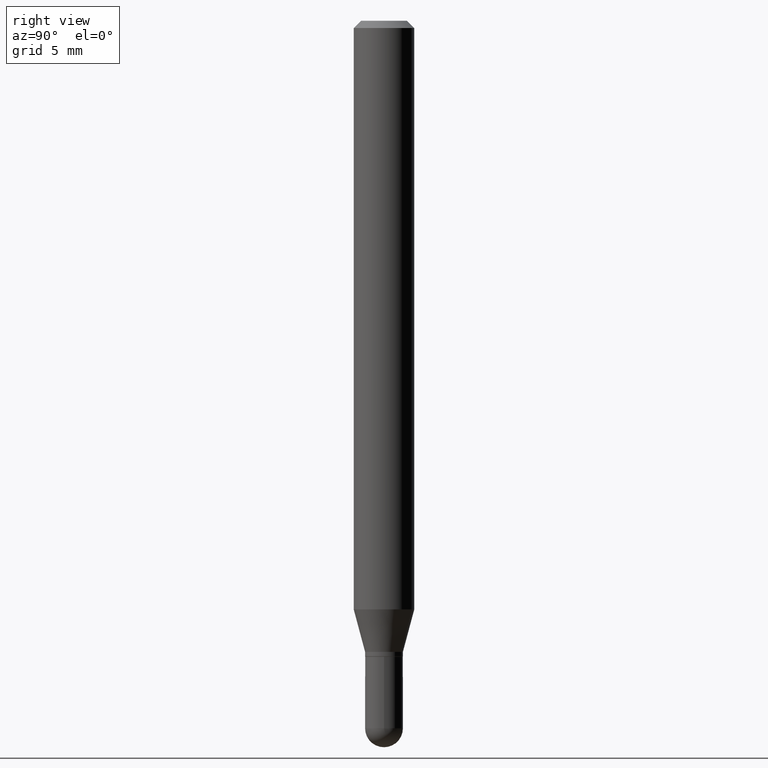
[diagram: clean part render]
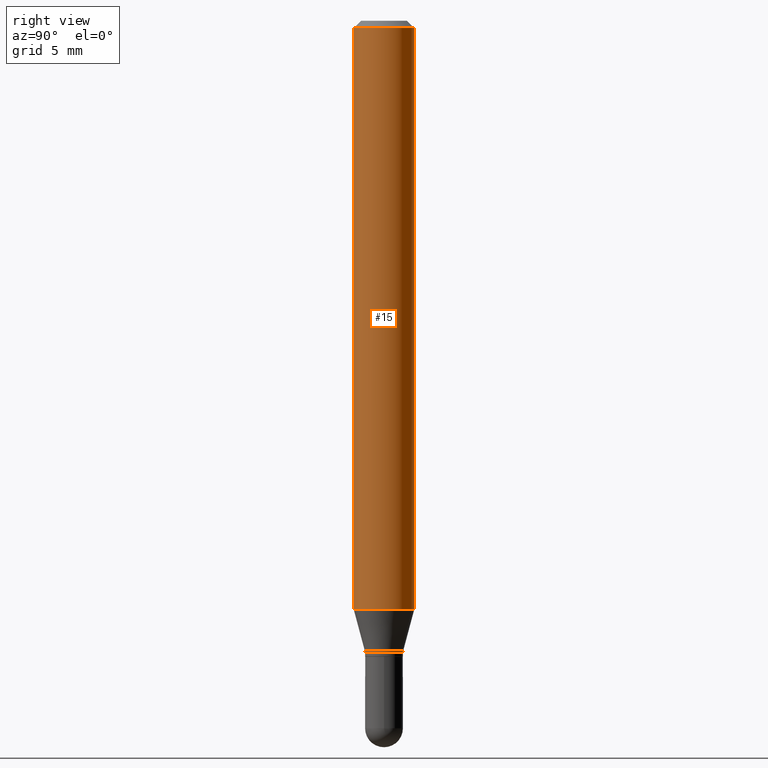
[diagram: same view with one face highlighted and labeled with its STEP entity id]
A machine part, right view. The second image highlights one B-rep face of the part: STEP entity #15.
In plain terms, the highlighted cylindrical surface (edge-blend (fillet) strip) has radius 1.5875 mm, axis along (-0, 0, 1).
Its self-contained STEP definition (entity closure, byte-faithful):
#6 = DIRECTION ( 'NONE',  ( -2.445707618412851454E-29, 3.491139346140710505E-15, 1.000000000000000000 ) ) ;
#15 = ADVANCED_FACE ( 'NONE', ( #129 ), #119, .T. ) ;
#60 = CARTESIAN_POINT ( 'NONE',  ( -4.364351673553916694E-16, -0.06250000000000001388, 2.181962091337944559E-16 ) ) ;
#71 = VERTEX_POINT ( 'NONE', #194 ) ;
#84 = VECTOR ( 'NONE', #6, 39.37007874015748143 ) ;
#92 = CIRCLE ( 'NONE', #276, 0.06250000000000001388 ) ;
#116 = AXIS2_PLACEMENT_3D ( 'NONE', #275, #183, #269 ) ;
#119 = CYLINDRICAL_SURFACE ( 'NONE', #490, 0.06250000000000001388 ) ;
#129 = FACE_OUTER_BOUND ( 'NONE', #464, .T. ) ;
#137 = ORIENTED_EDGE ( 'NONE', *, *, #486, .T. ) ;
#158 = CARTESIAN_POINT ( 'NONE',  ( 0.000000000000000000, 0.000000000000000000, 0.000000000000000000 ) ) ;
#183 = DIRECTION ( 'NONE',  ( -2.445707618412851174E-29, 3.491139346140710505E-15, 1.000000000000000000 ) ) ;
#184 = VERTEX_POINT ( 'NONE', #361 ) ;
#194 = CARTESIAN_POINT ( 'NONE',  ( 4.440892098500920012E-16, 0.06249999999999571176, -1.215483408562511247 ) ) ;
#205 = CIRCLE ( 'NONE', #116, 0.06250000000000000000 ) ;
#211 = EDGE_CURVE ( 'NONE', #314, #71, #205, .T. ) ;
#226 = CARTESIAN_POINT ( 'NONE',  ( 3.668561427619468125E-31, -5.236709019211339271E-17, -0.01500000000000078354 ) ) ;
#240 = CARTESIAN_POINT ( 'NONE',  ( 4.440892098500924943E-16, 0.06249999999999995837, -0.01500000000000100038 ) ) ;
#258 = DIRECTION ( 'NONE',  ( -2.445707618412851454E-29, 3.491139346140710505E-15, 1.000000000000000000 ) ) ;
#269 = DIRECTION ( 'NONE',  ( -6.982962677686265922E-15, -1.000000000000000000, 4.370956789862821150E-15 ) ) ;
#275 = CARTESIAN_POINT ( 'NONE',  ( 2.972717032375753484E-29, -4.243421952213807454E-15, -1.215483408562511025 ) ) ;
#276 = AXIS2_PLACEMENT_3D ( 'NONE', #226, #302, #462 ) ;
#284 = DIRECTION ( 'NONE',  ( -6.982962677686265133E-15, -1.000000000000000000, 3.491139346140710505E-15 ) ) ;
#296 = EDGE_CURVE ( 'NONE', #184, #308, #92, .T. ) ;
#302 = DIRECTION ( 'NONE',  ( -2.445707618412851174E-29, 3.491139346140710505E-15, 1.000000000000000000 ) ) ;
#308 = VERTEX_POINT ( 'NONE', #240 ) ;
#314 = VERTEX_POINT ( 'NONE', #366 ) ;
#322 = DIRECTION ( 'NONE',  ( -2.445707618412851174E-29, 3.491139346140710505E-15, 1.000000000000000000 ) ) ;
#327 = VECTOR ( 'NONE', #258, 39.37007874015748143 ) ;
#339 = LINE ( 'NONE', #453, #327 ) ;
#341 = LINE ( 'NONE', #60, #84 ) ;
#361 = CARTESIAN_POINT ( 'NONE',  ( -4.364351673553913736E-16, -0.06250000000000006939, -0.01500000000000056496 ) ) ;
#366 = CARTESIAN_POINT ( 'NONE',  ( -4.364351673553621364E-16, -0.06250000000000427436, -1.215483408562510803 ) ) ;
#385 = ORIENTED_EDGE ( 'NONE', *, *, #296, .F. ) ;
#422 = EDGE_CURVE ( 'NONE', #314, #184, #341, .T. ) ;
#453 = CARTESIAN_POINT ( 'NONE',  ( 4.440892098500626162E-16, 0.06250000000000001388, -2.181962091337944559E-16 ) ) ;
#462 = DIRECTION ( 'NONE',  ( -6.982962677686265922E-15, -1.000000000000000000, 3.483106191921934765E-15 ) ) ;
#464 = EDGE_LOOP ( 'NONE', ( #501, #137, #385, #467 ) ) ;
#467 = ORIENTED_EDGE ( 'NONE', *, *, #422, .F. ) ;
#486 = EDGE_CURVE ( 'NONE', #71, #308, #339, .T. ) ;
#490 = AXIS2_PLACEMENT_3D ( 'NONE', #158, #322, #284 ) ;
#501 = ORIENTED_EDGE ( 'NONE', *, *, #211, .T. ) ;